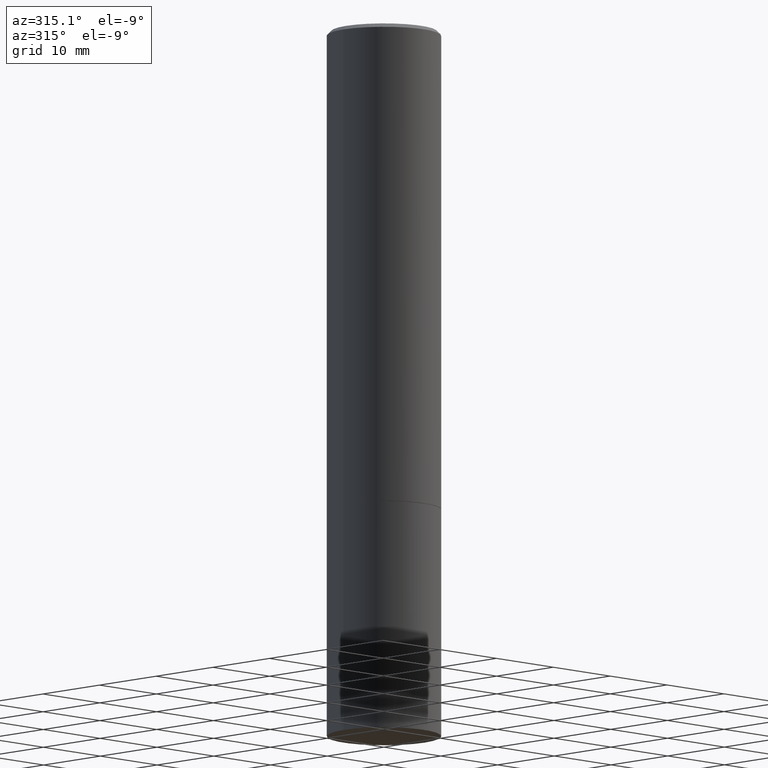
[diagram: clean part render]
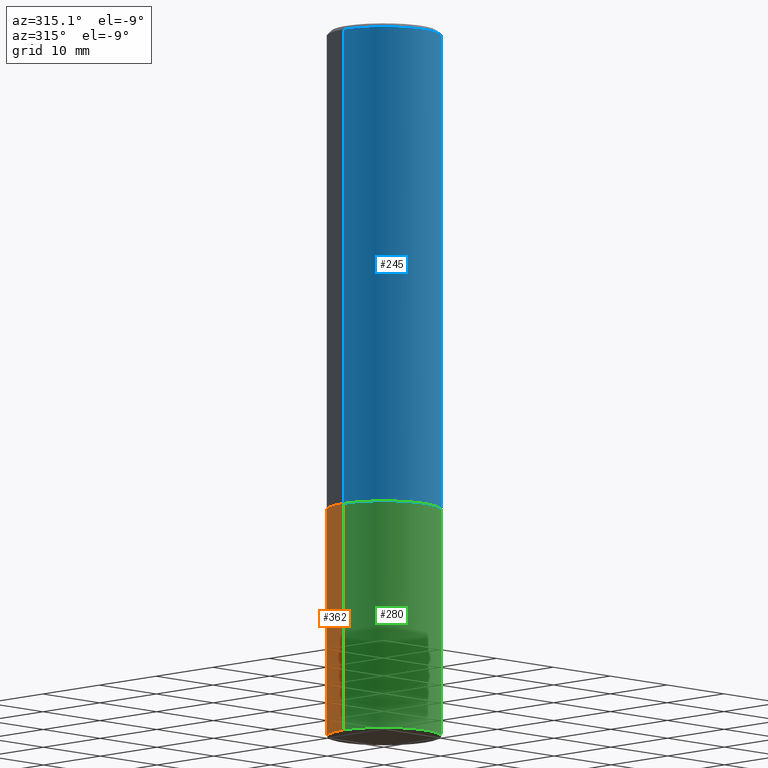
[diagram: same view with three faces highlighted in distinct colors, each labeled with its STEP entity id]
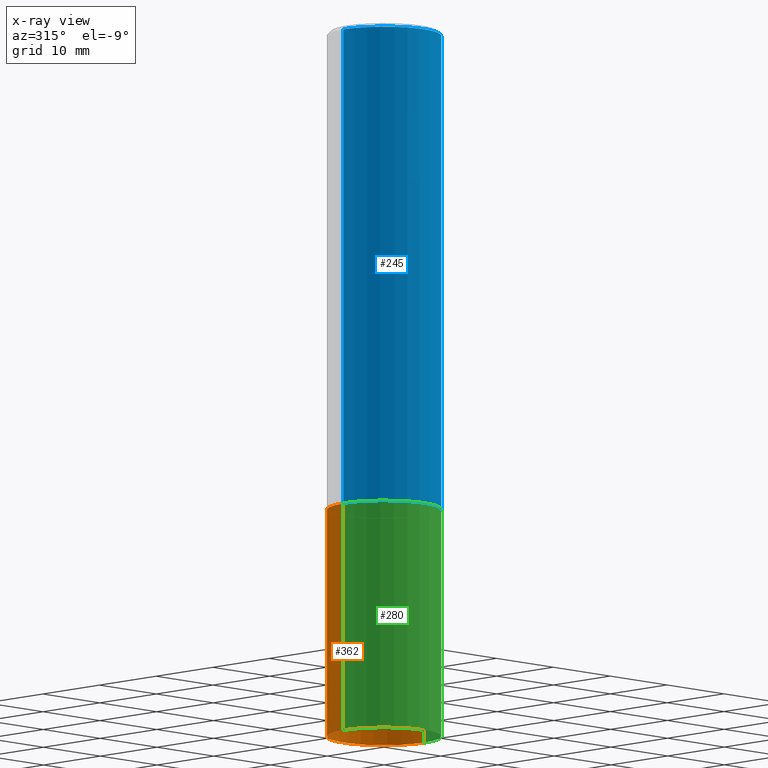
[diagram: x-ray of the same camera — body ghosted, the three highlighted faces saturated]
A machine part, auxiliary view with three faces highlighted in distinct colors.
The next image is the same camera in x-ray (body ghosted, the three faces saturated) — at least one of them is partly hidden behind the body in this view.
Their STEP definitions:

[orange] entity #362 — the highlighted cylindrical surface (partial cylindrical patch) has radius 7.1437 mm, axis along (-0, 0, 1).
#10 = DIRECTION ( 'NONE',  ( -2.445468806185136877E-29, 3.491481338843145188E-15, 1.000000000000000000 ) ) ;
#15 = EDGE_LOOP ( 'NONE', ( #210, #216, #238, #44 ) ) ;
#35 = VECTOR ( 'NONE', #365, 39.37007874015748143 ) ;
#37 = EDGE_CURVE ( 'NONE', #270, #182, #364, .T. ) ;
#44 = ORIENTED_EDGE ( 'NONE', *, *, #266, .F. ) ;
#48 = LINE ( 'NONE', #192, #35 ) ;
#49 = CIRCLE ( 'NONE', #234, 0.2812500000000000000 ) ;
#59 = EDGE_CURVE ( 'NONE', #110, #182, #48, .T. ) ;
#71 = CARTESIAN_POINT ( 'NONE',  ( 0.2812500000000000000, -1.025622643285173184E-14, -2.374999999999999556 ) ) ;
#94 = AXIS2_PLACEMENT_3D ( 'NONE', #159, #219, #187 ) ;
#102 = DIRECTION ( 'NONE',  ( 1.000000000000000000, -6.982962677686269866E-15, 0.000000000000000000 ) ) ;
#110 = VERTEX_POINT ( 'NONE', #338 ) ;
#117 = EDGE_CURVE ( 'NONE', #189, #110, #49, .T. ) ;
#125 = FACE_OUTER_BOUND ( 'NONE', #15, .T. ) ;
#130 = CARTESIAN_POINT ( 'NONE',  ( 0.2812500000000000000, -1.418414293905027264E-14, -3.500000000000000000 ) ) ;
#135 = DIRECTION ( 'NONE',  ( -2.445468806185136597E-29, 3.491481338843145583E-15, 1.000000000000000000 ) ) ;
#158 = VECTOR ( 'NONE', #10, 39.37007874015748143 ) ;
#159 = CARTESIAN_POINT ( 'NONE',  ( 0.000000000000000000, 0.000000000000000000, 0.000000000000000000 ) ) ;
#160 = CARTESIAN_POINT ( 'NONE',  ( -0.2812500000000000000, -8.257824988526456379E-15, -2.374999999999999556 ) ) ;
#179 = LINE ( 'NONE', #349, #158 ) ;
#182 = VERTEX_POINT ( 'NONE', #160 ) ;
#187 = DIRECTION ( 'NONE',  ( 1.000000000000000000, -6.982962677686266711E-15, 4.876176775795935793E-29 ) ) ;
#189 = VERTEX_POINT ( 'NONE', #130 ) ;
#192 = CARTESIAN_POINT ( 'NONE',  ( -0.2812500000000000000, 1.998401444325281773E-15, -1.383450494134192269E-29 ) ) ;
#210 = ORIENTED_EDGE ( 'NONE', *, *, #117, .T. ) ;
#216 = ORIENTED_EDGE ( 'NONE', *, *, #59, .T. ) ;
#219 = DIRECTION ( 'NONE',  ( -2.445468806185136597E-29, 3.491481338843145583E-15, 1.000000000000000000 ) ) ;
#221 = AXIS2_PLACEMENT_3D ( 'NONE', #363, #135, #303 ) ;
#234 = AXIS2_PLACEMENT_3D ( 'NONE', #308, #284, #102 ) ;
#238 = ORIENTED_EDGE ( 'NONE', *, *, #37, .F. ) ;
#266 = EDGE_CURVE ( 'NONE', #189, #270, #179, .T. ) ;
#270 = VERTEX_POINT ( 'NONE', #71 ) ;
#284 = DIRECTION ( 'NONE',  ( -2.445468806185136597E-29, 3.491481338843145583E-15, 1.000000000000000000 ) ) ;
#303 = DIRECTION ( 'NONE',  ( 1.000000000000000000, -6.982962677686269866E-15, 0.000000000000000000 ) ) ;
#304 = CYLINDRICAL_SURFACE ( 'NONE', #94, 0.2812500000000000000 ) ;
#308 = CARTESIAN_POINT ( 'NONE',  ( 8.559140821647976968E-29, -1.222018468595100934E-14, -3.500000000000000000 ) ) ;
#338 = CARTESIAN_POINT ( 'NONE',  ( -0.2812500000000000000, -8.257824988526456379E-15, -3.500000000000000000 ) ) ;
#349 = CARTESIAN_POINT ( 'NONE',  ( 0.2812500000000000000, -1.963958253099262512E-15, 1.371424718192607012E-29 ) ) ;
#362 = ADVANCED_FACE ( 'NONE', ( #125 ), #304, .T. ) ;
#363 = CARTESIAN_POINT ( 'NONE',  ( 5.807988414689698296E-29, -8.292268179752468540E-15, -2.374999999999999556 ) ) ;
#364 = CIRCLE ( 'NONE', #221, 0.2812500000000000000 ) ;
#365 = DIRECTION ( 'NONE',  ( -2.445468806185136877E-29, 3.491481338843145188E-15, 1.000000000000000000 ) ) ;

[blue] entity #245 — the highlighted cylindrical surface (partial cylindrical patch) has radius 7.1437 mm, axis along (-0, 0, 1).
#2 = ORIENTED_EDGE ( 'NONE', *, *, #355, .T. ) ;
#5 = CARTESIAN_POINT ( 'NONE',  ( -0.2812499999999998890, 1.998401444325280984E-15, -1.383450494134191708E-29 ) ) ;
#6 = VECTOR ( 'NONE', #116, 39.37007874015748143 ) ;
#21 = VECTOR ( 'NONE', #25, 39.37007874015748143 ) ;
#25 = DIRECTION ( 'NONE',  ( -2.445468806185136877E-29, 3.491481338843145188E-15, 1.000000000000000000 ) ) ;
#27 = EDGE_CURVE ( 'NONE', #252, #233, #293, .T. ) ;
#43 = VERTEX_POINT ( 'NONE', #220 ) ;
#51 = DIRECTION ( 'NONE',  ( -2.445468806185136597E-29, 3.491481338843145583E-15, 1.000000000000000000 ) ) ;
#53 = CARTESIAN_POINT ( 'NONE',  ( 5.805542945883512693E-29, -8.288776698413625533E-15, -2.373999999999999222 ) ) ;
#57 = FACE_OUTER_BOUND ( 'NONE', #360, .T. ) ;
#84 = CARTESIAN_POINT ( 'NONE',  ( -0.2812499999999997780, 1.894128626322398031E-15, -0.02000000000000006981 ) ) ;
#104 = CARTESIAN_POINT ( 'NONE',  ( 4.890937612370289799E-31, -6.982962677686315028E-17, -0.02000000000000006981 ) ) ;
#109 = VERTEX_POINT ( 'NONE', #225 ) ;
#116 = DIRECTION ( 'NONE',  ( -2.445468806185136877E-29, 3.491481338843145188E-15, 1.000000000000000000 ) ) ;
#119 = CIRCLE ( 'NONE', #172, 0.2812500000000000555 ) ;
#122 = ORIENTED_EDGE ( 'NONE', *, *, #27, .F. ) ;
#161 = DIRECTION ( 'NONE',  ( 1.000000000000000000, -6.982962677686268288E-15, 0.000000000000000000 ) ) ;
#165 = DIRECTION ( 'NONE',  ( 1.000000000000000000, -6.982962677686266711E-15, 0.000000000000000000 ) ) ;
#166 = CYLINDRICAL_SURFACE ( 'NONE', #319, 0.2812499999999998890 ) ;
#170 = LINE ( 'NONE', #5, #6 ) ;
#171 = CARTESIAN_POINT ( 'NONE',  ( 0.2812499999999997780, -1.999344688650104578E-15, -0.02000000000000006981 ) ) ;
#172 = AXIS2_PLACEMENT_3D ( 'NONE', #53, #51, #161 ) ;
#178 = EDGE_CURVE ( 'NONE', #109, #43, #119, .T. ) ;
#191 = LINE ( 'NONE', #329, #21 ) ;
#200 = EDGE_CURVE ( 'NONE', #109, #252, #170, .T. ) ;
#220 = CARTESIAN_POINT ( 'NONE',  ( 0.2812500000000000555, -1.025273495151288883E-14, -2.373999999999999222 ) ) ;
#225 = CARTESIAN_POINT ( 'NONE',  ( -0.2812500000000000555, -2.180901718269960671E-15, -2.373999999999999222 ) ) ;
#227 = DIRECTION ( 'NONE',  ( -2.445468806185136597E-29, 3.491481338843145583E-15, 1.000000000000000000 ) ) ;
#233 = VERTEX_POINT ( 'NONE', #171 ) ;
#245 = ADVANCED_FACE ( 'NONE', ( #57 ), #166, .T. ) ;
#252 = VERTEX_POINT ( 'NONE', #84 ) ;
#254 = DIRECTION ( 'NONE',  ( -2.445468806185136597E-29, 3.491481338843145583E-15, 1.000000000000000000 ) ) ;
#261 = AXIS2_PLACEMENT_3D ( 'NONE', #104, #227, #165 ) ;
#285 = CARTESIAN_POINT ( 'NONE',  ( 0.000000000000000000, 0.000000000000000000, 0.000000000000000000 ) ) ;
#293 = CIRCLE ( 'NONE', #261, 0.2812499999999997780 ) ;
#295 = ORIENTED_EDGE ( 'NONE', *, *, #200, .F. ) ;
#319 = AXIS2_PLACEMENT_3D ( 'NONE', #285, #254, #344 ) ;
#329 = CARTESIAN_POINT ( 'NONE',  ( 0.2812499999999998890, -1.963958253099262118E-15, 1.371424718192606451E-29 ) ) ;
#330 = ORIENTED_EDGE ( 'NONE', *, *, #178, .T. ) ;
#344 = DIRECTION ( 'NONE',  ( 1.000000000000000000, -6.982962677686268288E-15, 4.876176775795935793E-29 ) ) ;
#355 = EDGE_CURVE ( 'NONE', #43, #233, #191, .T. ) ;
#360 = EDGE_LOOP ( 'NONE', ( #295, #330, #2, #122 ) ) ;

[green] entity #280 — the highlighted cylindrical surface (partial cylindrical patch) has radius 7.1437 mm, axis along (-0, 0, 1).
#10 = DIRECTION ( 'NONE',  ( -2.445468806185136877E-29, 3.491481338843145188E-15, 1.000000000000000000 ) ) ;
#14 = DIRECTION ( 'NONE',  ( 1.000000000000000000, -6.982962677686266711E-15, 4.876176775795935793E-29 ) ) ;
#17 = CYLINDRICAL_SURFACE ( 'NONE', #343, 0.2812500000000000000 ) ;
#26 = DIRECTION ( 'NONE',  ( -2.445468806185136597E-29, 3.491481338843145583E-15, 1.000000000000000000 ) ) ;
#35 = VECTOR ( 'NONE', #365, 39.37007874015748143 ) ;
#48 = LINE ( 'NONE', #192, #35 ) ;
#59 = EDGE_CURVE ( 'NONE', #110, #182, #48, .T. ) ;
#71 = CARTESIAN_POINT ( 'NONE',  ( 0.2812500000000000000, -1.025622643285173184E-14, -2.374999999999999556 ) ) ;
#72 = EDGE_CURVE ( 'NONE', #182, #270, #105, .T. ) ;
#105 = CIRCLE ( 'NONE', #127, 0.2812500000000000000 ) ;
#110 = VERTEX_POINT ( 'NONE', #338 ) ;
#127 = AXIS2_PLACEMENT_3D ( 'NONE', #336, #26, #183 ) ;
#130 = CARTESIAN_POINT ( 'NONE',  ( 0.2812500000000000000, -1.418414293905027264E-14, -3.500000000000000000 ) ) ;
#151 = EDGE_LOOP ( 'NONE', ( #323, #244, #272, #174 ) ) ;
#154 = DIRECTION ( 'NONE',  ( -2.445468806185136597E-29, 3.491481338843145583E-15, 1.000000000000000000 ) ) ;
#158 = VECTOR ( 'NONE', #10, 39.37007874015748143 ) ;
#160 = CARTESIAN_POINT ( 'NONE',  ( -0.2812500000000000000, -8.257824988526456379E-15, -2.374999999999999556 ) ) ;
#164 = EDGE_CURVE ( 'NONE', #110, #189, #255, .T. ) ;
#174 = ORIENTED_EDGE ( 'NONE', *, *, #72, .F. ) ;
#179 = LINE ( 'NONE', #349, #158 ) ;
#182 = VERTEX_POINT ( 'NONE', #160 ) ;
#183 = DIRECTION ( 'NONE',  ( 1.000000000000000000, -6.982962677686269866E-15, 0.000000000000000000 ) ) ;
#185 = DIRECTION ( 'NONE',  ( -2.445468806185136597E-29, 3.491481338843145583E-15, 1.000000000000000000 ) ) ;
#189 = VERTEX_POINT ( 'NONE', #130 ) ;
#192 = CARTESIAN_POINT ( 'NONE',  ( -0.2812500000000000000, 1.998401444325281773E-15, -1.383450494134192269E-29 ) ) ;
#244 = ORIENTED_EDGE ( 'NONE', *, *, #164, .T. ) ;
#255 = CIRCLE ( 'NONE', #283, 0.2812500000000000000 ) ;
#266 = EDGE_CURVE ( 'NONE', #189, #270, #179, .T. ) ;
#270 = VERTEX_POINT ( 'NONE', #71 ) ;
#272 = ORIENTED_EDGE ( 'NONE', *, *, #266, .T. ) ;
#280 = ADVANCED_FACE ( 'NONE', ( #351 ), #17, .T. ) ;
#283 = AXIS2_PLACEMENT_3D ( 'NONE', #361, #185, #306 ) ;
#297 = CARTESIAN_POINT ( 'NONE',  ( 0.000000000000000000, 0.000000000000000000, 0.000000000000000000 ) ) ;
#306 = DIRECTION ( 'NONE',  ( 1.000000000000000000, -6.982962677686269866E-15, 0.000000000000000000 ) ) ;
#323 = ORIENTED_EDGE ( 'NONE', *, *, #59, .F. ) ;
#336 = CARTESIAN_POINT ( 'NONE',  ( 5.807988414689698296E-29, -8.292268179752468540E-15, -2.374999999999999556 ) ) ;
#338 = CARTESIAN_POINT ( 'NONE',  ( -0.2812500000000000000, -8.257824988526456379E-15, -3.500000000000000000 ) ) ;
#343 = AXIS2_PLACEMENT_3D ( 'NONE', #297, #154, #14 ) ;
#349 = CARTESIAN_POINT ( 'NONE',  ( 0.2812500000000000000, -1.963958253099262512E-15, 1.371424718192607012E-29 ) ) ;
#351 = FACE_OUTER_BOUND ( 'NONE', #151, .T. ) ;
#361 = CARTESIAN_POINT ( 'NONE',  ( 8.559140821647976968E-29, -1.222018468595100934E-14, -3.500000000000000000 ) ) ;
#365 = DIRECTION ( 'NONE',  ( -2.445468806185136877E-29, 3.491481338843145188E-15, 1.000000000000000000 ) ) ;